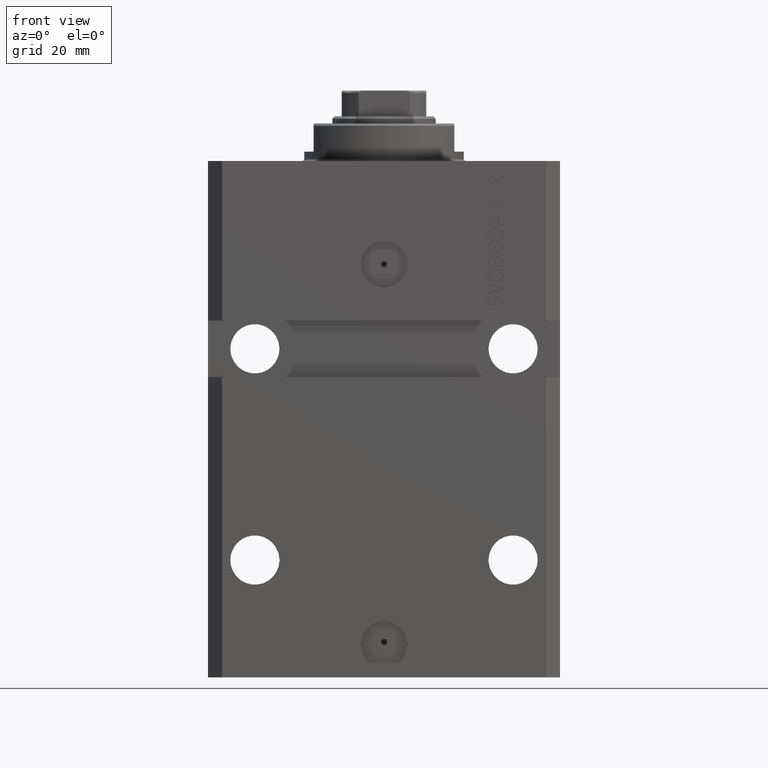
[diagram: clean part render]
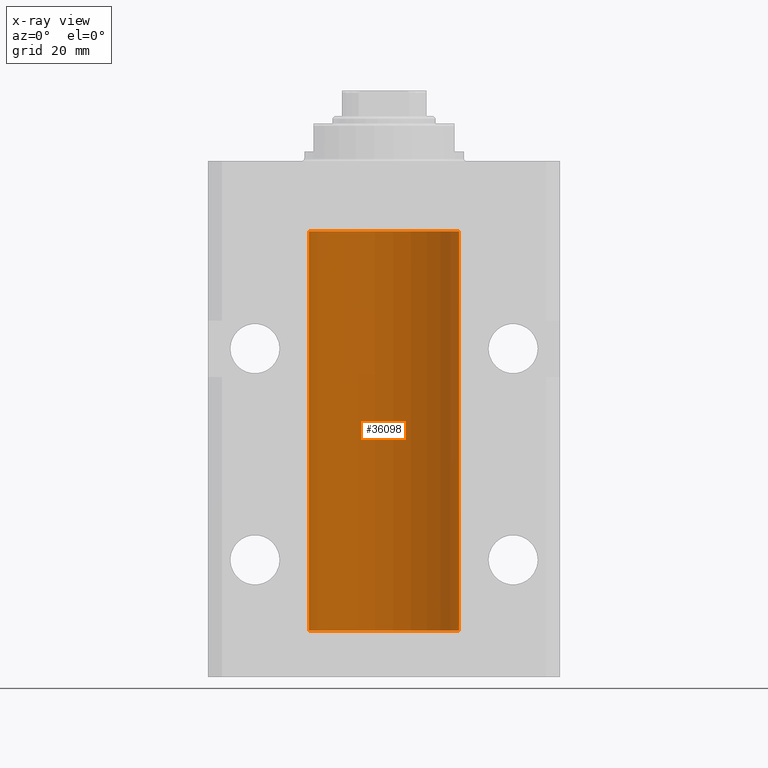
[diagram: x-ray — body ghosted, one internal face saturated and labeled with its STEP entity id]
A machine part, front view, then the same camera in x-ray: the body is ghosted and one INTERNAL B-rep face — a face not visible from any outside direction — is saturated and labeled: STEP entity #36098.
In plain terms, the highlighted cylindrical surface (partial cylindrical patch) has radius 16 mm, axis along (0, 0, 1).
Its self-contained STEP definition (entity closure, byte-faithful):
#523 = VERTEX_POINT ( 'NONE', #14925 ) ;
#611 = CARTESIAN_POINT ( 'NONE',  ( 15.98778830858104172, 0.6249999999996183053, -21.91847885046212951 ) ) ;
#910 = CARTESIAN_POINT ( 'NONE',  ( 15.99070366873610638, 0.5574063959866681905, -22.32639436837549596 ) ) ;
#1194 = B_SPLINE_CURVE_WITH_KNOTS ( 'NONE', 3,
 ( #14818, #611, #14149, #25193, #11433, #24520, #38291, #14371 ),
 .UNSPECIFIED., .F., .F.,
 ( 4, 2, 2, 4 ),
 ( 0.0009773326288699671956, 0.001221554802188560499, 0.001465776975507153803, 0.001954221322144333254 ),
 .UNSPECIFIED. ) ;
#1534 = DIRECTION ( 'NONE',  ( 1.000000000000000000, 0.000000000000000000, 0.000000000000000000 ) ) ;
#1669 = CARTESIAN_POINT ( 'NONE',  ( 16.00000000000000000, 0.000000000000000000, -100.0999999999999943 ) ) ;
#2295 = DIRECTION ( 'NONE',  ( -0.000000000000000000, -0.000000000000000000, 1.000000000000000000 ) ) ;
#3339 = ORIENTED_EDGE ( 'NONE', *, *, #5891, .T. ) ;
#3851 = CARTESIAN_POINT ( 'NONE',  ( -16.00000000000000000, 1.959434878635765131E-15, -100.0999999999999943 ) ) ;
#4078 = CARTESIAN_POINT ( 'NONE',  ( 16.00000000000000000, 0.000000000000000000, -100.0999999999999943 ) ) ;
#4298 = CARTESIAN_POINT ( 'NONE',  ( 15.99934183755191341, 0.1636877470526788836, -22.60872690654067796 ) ) ;
#4693 = DIRECTION ( 'NONE',  ( 0.000000000000000000, 0.000000000000000000, 1.000000000000000000 ) ) ;
#5066 = ORIENTED_EDGE ( 'NONE', *, *, #18329, .T. ) ;
#5094 = EDGE_CURVE ( 'NONE', #34680, #42917, #1194, .T. ) ;
#5236 = EDGE_CURVE ( 'NONE', #11949, #523, #36918, .T. ) ;
#5891 = EDGE_CURVE ( 'NONE', #42917, #28630, #33650, .T. ) ;
#6175 = ORIENTED_EDGE ( 'NONE', *, *, #5236, .T. ) ;
#6328 = DIRECTION ( 'NONE',  ( -0.000000000000000000, -0.000000000000000000, 1.000000000000000000 ) ) ;
#6331 = CARTESIAN_POINT ( 'NONE',  ( 16.00000000000000000, -1.835653844722709729E-15, -98.62500000000000000 ) ) ;
#6830 = CARTESIAN_POINT ( 'NONE',  ( 15.98778830858070954, 0.6250000000080517815, -97.99999999999916156 ) ) ;
#7052 = CARTESIAN_POINT ( 'NONE',  ( 15.99934183755190986, 0.1636877470527013101, -98.60872690654072414 ) ) ;
#7458 = DIRECTION ( 'NONE',  ( -0.000000000000000000, -0.000000000000000000, 1.000000000000000000 ) ) ;
#7589 = CARTESIAN_POINT ( 'NONE',  ( 15.98778830858070954, 0.6250000000080517815, -97.99999999999916156 ) ) ;
#8044 = EDGE_CURVE ( 'NONE', #25195, #23530, #26264, .T. ) ;
#8115 = CARTESIAN_POINT ( 'NONE',  ( 15.98844460043491367, 0.6087869699337551399, -97.83657454967556077 ) ) ;
#8791 = CARTESIAN_POINT ( 'NONE',  ( 15.99228275317786441, 0.5002975944204781644, -97.61642014570176684 ) ) ;
#9170 = EDGE_CURVE ( 'NONE', #36437, #25195, #38369, .T. ) ;
#9936 = FACE_OUTER_BOUND ( 'NONE', #43922, .T. ) ;
#10676 = CARTESIAN_POINT ( 'NONE',  ( 16.00000000000000000, 0.000000000000000000, -15.00000000000000000 ) ) ;
#10981 = VECTOR ( 'NONE', #7458, 1000.000000000000000 ) ;
#11433 = CARTESIAN_POINT ( 'NONE',  ( 15.99228275317787507, 0.5002975944204003378, -21.61642014570181303 ) ) ;
#11511 = CARTESIAN_POINT ( 'NONE',  ( 15.99711856062700477, 0.3252985083514284281, -97.44140297987712529 ) ) ;
#11731 = CARTESIAN_POINT ( 'NONE',  ( 16.00000000000013145, 3.665532692826917502E-13, -97.37499999999657518 ) ) ;
#11949 = VERTEX_POINT ( 'NONE', #21955 ) ;
#13063 = VECTOR ( 'NONE', #19760, 1000.000000000000000 ) ;
#13825 = CARTESIAN_POINT ( 'NONE',  ( -16.00000000000000000, 1.959434878635765131E-15, -100.0999999999999943 ) ) ;
#14104 = VECTOR ( 'NONE', #28211, 1000.000000000000000 ) ;
#14149 = CARTESIAN_POINT ( 'NONE',  ( 15.98844460043492077, 0.6087869699336542206, -21.83657454967558564 ) ) ;
#14371 = CARTESIAN_POINT ( 'NONE',  ( 16.00000000000013145, 3.665532680419208314E-13, -21.37499999999658229 ) ) ;
#14529 = CARTESIAN_POINT ( 'NONE',  ( 16.00000000000013145, 3.665532680419208314E-13, -21.37499999999658229 ) ) ;
#14818 = CARTESIAN_POINT ( 'NONE',  ( 15.98778830858070954, 0.6250000000079481977, -21.99999999999914735 ) ) ;
#14888 = CARTESIAN_POINT ( 'NONE',  ( 15.98778830858103817, 0.6249999999997223332, -97.91847885046210820 ) ) ;
#14925 = CARTESIAN_POINT ( 'NONE',  ( 16.00000000000000000, -7.378931128587136680E-16, -22.62500000000000000 ) ) ;
#15390 = ORIENTED_EDGE ( 'NONE', *, *, #5094, .T. ) ;
#16487 = CARTESIAN_POINT ( 'NONE',  ( 16.00000000000000000, 0.000000000000000000, -100.0999999999999943 ) ) ;
#16563 = ORIENTED_EDGE ( 'NONE', *, *, #8044, .T. ) ;
#16654 = CARTESIAN_POINT ( 'NONE',  ( -16.00000000000000000, 1.959434878635765131E-15, -15.00000000000000000 ) ) ;
#17356 = CARTESIAN_POINT ( 'NONE',  ( 0.000000000000000000, 0.000000000000000000, -100.0999999999999943 ) ) ;
#17483 = EDGE_CURVE ( 'NONE', #28630, #44586, #27816, .T. ) ;
#17840 = CARTESIAN_POINT ( 'NONE',  ( 15.98778830858101152, 0.6250000000001202372, -22.16311639173018477 ) ) ;
#18329 = EDGE_CURVE ( 'NONE', #523, #34680, #28871, .T. ) ;
#19760 = DIRECTION ( 'NONE',  ( -0.000000000000000000, -0.000000000000000000, 1.000000000000000000 ) ) ;
#19784 = B_SPLINE_CURVE_WITH_KNOTS ( 'NONE', 3,
 ( #29091, #14888, #8115, #39697, #8791, #11511, #35648, #11731 ),
 .UNSPECIFIED., .F., .F.,
 ( 4, 2, 2, 4 ),
 ( 0.0009773326288700682433, 0.001221554802188685399, 0.001465776975507302772, 0.001954221322144537518 ),
 .UNSPECIFIED. ) ;
#20015 = EDGE_CURVE ( 'NONE', #38973, #44586, #24609, .T. ) ;
#20804 = CARTESIAN_POINT ( 'NONE',  ( 16.00000000000001066, 0.08261762387943044628, -98.62500000000001421 ) ) ;
#20836 = DIRECTION ( 'NONE',  ( 0.000000000000000000, 0.000000000000000000, 1.000000000000000000 ) ) ;
#21371 = AXIS2_PLACEMENT_3D ( 'NONE', #17356, #6328, #40846 ) ;
#21955 = CARTESIAN_POINT ( 'NONE',  ( 16.00000000000013145, 3.665532692826917502E-13, -97.37499999999657518 ) ) ;
#21990 = ORIENTED_EDGE ( 'NONE', *, *, #17483, .T. ) ;
#22037 = ORIENTED_EDGE ( 'NONE', *, *, #9170, .T. ) ;
#22909 = EDGE_CURVE ( 'NONE', #36437, #38973, #33670, .T. ) ;
#23530 = VERTEX_POINT ( 'NONE', #7589 ) ;
#23771 = CARTESIAN_POINT ( 'NONE',  ( 0.000000000000000000, 0.000000000000000000, -15.00000000000000000 ) ) ;
#24372 = CARTESIAN_POINT ( 'NONE',  ( 15.99707608081895494, 0.3151028052309814975, -22.54594170697728117 ) ) ;
#24520 = CARTESIAN_POINT ( 'NONE',  ( 15.99711856062700122, 0.3252985083513916242, -21.44140297987714661 ) ) ;
#24609 = LINE ( 'NONE', #3851, #14104 ) ;
#24655 = DIRECTION ( 'NONE',  ( 1.000000000000000000, 0.000000000000000000, 0.000000000000000000 ) ) ;
#25193 = CARTESIAN_POINT ( 'NONE',  ( 15.99070695999104252, 0.5461439696926362330, -21.68526802364053552 ) ) ;
#25195 = VERTEX_POINT ( 'NONE', #6331 ) ;
#26264 = B_SPLINE_CURVE_WITH_KNOTS ( 'NONE', 3,
 ( #30742, #20804, #7052, #44519, #27337, #41126, #37725, #6830 ),
 .UNSPECIFIED., .F., .F.,
 ( 4, 2, 2, 4 ),
 ( 1.783888443149829469E-18, 0.0002443331572175257886, 0.0004886663144350497342, 0.0009773326288700682433 ),
 .UNSPECIFIED. ) ;
#26529 = CARTESIAN_POINT ( 'NONE',  ( 16.00000000000000000, 0.000000000000000000, -100.0999999999999943 ) ) ;
#27337 = CARTESIAN_POINT ( 'NONE',  ( 15.99548458234361448, 0.3844468804816183471, -98.49947786696355934 ) ) ;
#27816 = CIRCLE ( 'NONE', #35764, 16.00000000000000000 ) ;
#28211 = DIRECTION ( 'NONE',  ( -0.000000000000000000, -0.000000000000000000, 1.000000000000000000 ) ) ;
#28216 = CARTESIAN_POINT ( 'NONE',  ( 15.98778830858070954, 0.6250000000079481977, -21.99999999999914735 ) ) ;
#28630 = VERTEX_POINT ( 'NONE', #10676 ) ;
#28824 = CARTESIAN_POINT ( 'NONE',  ( 0.000000000000000000, 0.000000000000000000, -100.0999999999999943 ) ) ;
#28871 = B_SPLINE_CURVE_WITH_KNOTS ( 'NONE', 3,
 ( #38815, #31609, #4298, #24372, #39024, #910, #17840, #42206 ),
 .UNSPECIFIED., .F., .F.,
 ( 4, 2, 2, 4 ),
 ( 1.864948331951035013E-18, 0.0002443331572174913110, 0.0004886663144349807789, 0.0009773326288699671956 ),
 .UNSPECIFIED. ) ;
#29091 = CARTESIAN_POINT ( 'NONE',  ( 15.98778830858070954, 0.6250000000080517815, -97.99999999999916156 ) ) ;
#30385 = VECTOR ( 'NONE', #2295, 1000.000000000000000 ) ;
#30742 = CARTESIAN_POINT ( 'NONE',  ( 16.00000000000000000, -1.835653844722709729E-15, -98.62500000000000000 ) ) ;
#30772 = AXIS2_PLACEMENT_3D ( 'NONE', #28824, #4693, #1534 ) ;
#31609 = CARTESIAN_POINT ( 'NONE',  ( 16.00000000000000000, 0.08261762387942135633, -22.62499999999996803 ) ) ;
#33650 = LINE ( 'NONE', #16487, #30385 ) ;
#33670 = CIRCLE ( 'NONE', #30772, 16.00000000000000000 ) ;
#34680 = VERTEX_POINT ( 'NONE', #28216 ) ;
#35648 = CARTESIAN_POINT ( 'NONE',  ( 15.99999999999999645, 0.1631343969470158417, -97.37500000000021316 ) ) ;
#35764 = AXIS2_PLACEMENT_3D ( 'NONE', #23771, #20836, #24655 ) ;
#36098 = ADVANCED_FACE ( 'NONE', ( #9936 ), #37241, .F. ) ;
#36437 = VERTEX_POINT ( 'NONE', #1669 ) ;
#36918 = LINE ( 'NONE', #26529, #13063 ) ;
#37241 = CYLINDRICAL_SURFACE ( 'NONE', #21371, 16.00000000000000000 ) ;
#37323 = ORIENTED_EDGE ( 'NONE', *, *, #20015, .F. ) ;
#37725 = CARTESIAN_POINT ( 'NONE',  ( 15.98778830858101685, 0.6250000000002223777, -98.16311639173024162 ) ) ;
#38291 = CARTESIAN_POINT ( 'NONE',  ( 15.99999999999999289, 0.1631343969470014366, -21.37500000000020606 ) ) ;
#38369 = LINE ( 'NONE', #4078, #10981 ) ;
#38709 = ORIENTED_EDGE ( 'NONE', *, *, #22909, .F. ) ;
#38815 = CARTESIAN_POINT ( 'NONE',  ( 16.00000000000000000, -7.378931128587136680E-16, -22.62500000000000000 ) ) ;
#38973 = VERTEX_POINT ( 'NONE', #13825 ) ;
#39024 = CARTESIAN_POINT ( 'NONE',  ( 15.99548458234361803, 0.3844468804815583396, -22.49947786696350960 ) ) ;
#39339 = EDGE_CURVE ( 'NONE', #23530, #11949, #19784, .T. ) ;
#39697 = CARTESIAN_POINT ( 'NONE',  ( 15.99070695999103542, 0.5461439696927204990, -97.68526802364048933 ) ) ;
#40846 = DIRECTION ( 'NONE',  ( 1.000000000000000000, 0.000000000000000000, 0.000000000000000000 ) ) ;
#41126 = CARTESIAN_POINT ( 'NONE',  ( 15.99070366873610283, 0.5574063959867601170, -98.32639436837558833 ) ) ;
#41881 = ORIENTED_EDGE ( 'NONE', *, *, #39339, .T. ) ;
#42206 = CARTESIAN_POINT ( 'NONE',  ( 15.98778830858070954, 0.6250000000079481977, -21.99999999999914735 ) ) ;
#42917 = VERTEX_POINT ( 'NONE', #14529 ) ;
#43922 = EDGE_LOOP ( 'NONE', ( #37323, #38709, #22037, #16563, #41881, #6175, #5066, #15390, #3339, #21990 ) ) ;
#44519 = CARTESIAN_POINT ( 'NONE',  ( 15.99707608081895138, 0.3151028052310259620, -98.54594170697734512 ) ) ;
#44586 = VERTEX_POINT ( 'NONE', #16654 ) ;